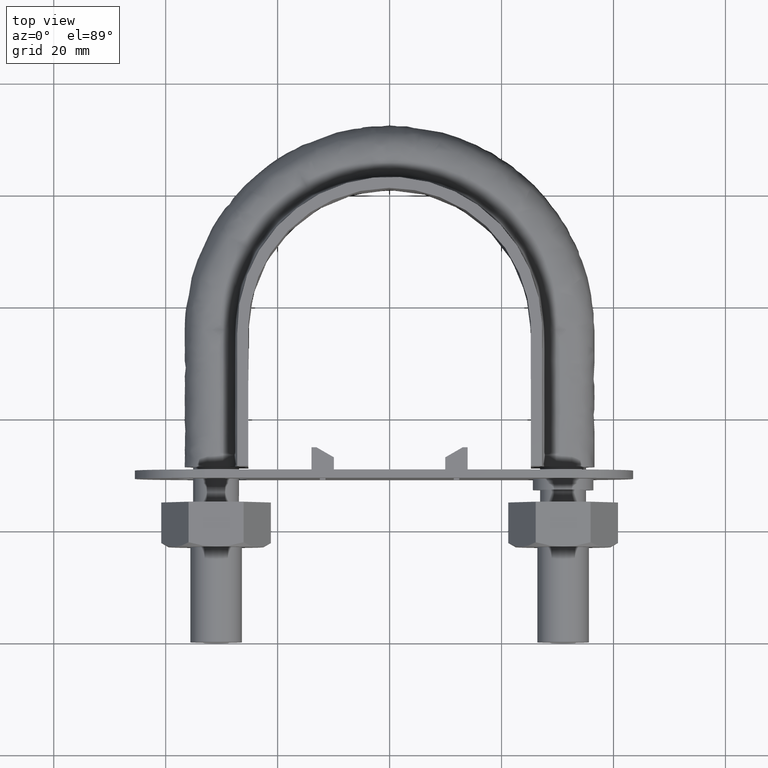
[diagram: clean part render]
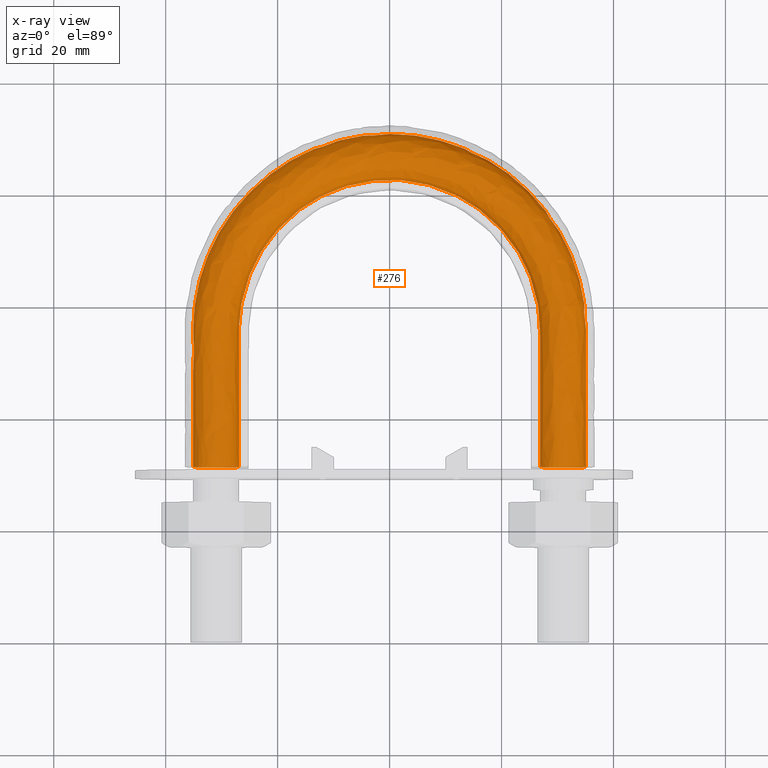
[diagram: x-ray — body ghosted, one internal face saturated and labeled with its STEP entity id]
A machine part, top view, then the same camera in x-ray: the body is ghosted and one INTERNAL B-rep face — a face not visible from any outside direction — is saturated and labeled: STEP entity #276.
In plain terms, the highlighted face is a freeform B-spline surface patch.
Its self-contained STEP definition (entity closure, byte-faithful):
#276 = ADVANCED_FACE( '', ( #399, #400 ), #401, .T. );
#399 = FACE_OUTER_BOUND( '', #1178, .T. );
#400 = FACE_OUTER_BOUND( '', #1179, .T. );
#401 = B_SPLINE_SURFACE_WITH_KNOTS( '', 3, 3, ( ( #1180, #1181, #1182, #1183, #1184, #1185, #1186, #1187, #1188, #1189, #1190, #1191, #1192, #1193, #1194 ), ( #1195, #1196, #1197, #1198, #1199, #1200, #1201, #1202, #1203, #1204, #1205, #1206, #1207, #1208, #1209 ), ( #1210, #1211, #1212, #1213, #1214, #1215, #1216, #1217, #1218, #1219, #1220, #1221, #1222, #1223, #1224 ), ( #1225, #1226, #1227, #1228, #1229, #1230, #1231, #1232, #1233, #1234, #1235, #1236, #1237, #1238, #1239 ), ( #1240, #1241, #1242, #1243, #1244, #1245, #1246, #1247, #1248, #1249, #1250, #1251, #1252, #1253, #1254 ), ( #1255, #1256, #1257, #1258, #1259, #1260, #1261, #1262, #1263, #1264, #1265, #1266, #1267, #1268, #1269 ), ( #1270, #1271, #1272, #1273, #1274, #1275, #1276, #1277, #1278, #1279, #1280, #1281, #1282, #1283, #1284 ), ( #1285, #1286, #1287, #1288, #1289, #1290, #1291, #1292, #1293, #1294, #1295, #1296, #1297, #1298, #1299 ), ( #1300, #1301, #1302, #1303, #1304, #1305, #1306, #1307, #1308, #1309, #1310, #1311, #1312, #1313, #1314 ), ( #1315, #1316, #1317, #1318, #1319, #1320, #1321, #1322, #1323, #1324, #1325, #1326, #1327, #1328, #1329 ) ), .UNSPECIFIED., .T., .F., .F., ( 2, 1, 1, 1, 1, 1, 1, 1, 1, 1, 1, 2 ), ( 4, 3, 1, 1, 1, 1, 1, 3, 4 ), ( -0.285714285714286, -0.142857142857143, 0.000000000000000, 0.142857142857143, 0.285714285714286, 0.428571428571429, 0.571428571428571, 0.714285714285714, 0.857142857142857, 1.00000000000000, 1.14285714285714, 1.28571428571429 ), ( 0.000000000000000, 1.00000000000000, 2.00000000000000, 3.00000000000000, 4.00000000000000, 5.00000000000000, 6.00000000000000, 7.00000000000000, 8.00000000000000 ), .UNSPECIFIED. );
#1178 = EDGE_LOOP( '', ( #1635, #1636, #1637, #1638, #1639, #1640, #1641 ) );
#1179 = EDGE_LOOP( '', ( #1642, #1643, #1644, #1645, #1646, #1647, #1648 ) );
#1180 = CARTESIAN_POINT( '', ( 28.0768231851220, 28.6500000000000, -3.66554778583225 ) );
#1181 = CARTESIAN_POINT( '', ( 28.0768231851220, 37.6833333333333, -3.66554778583225 ) );
#1182 = CARTESIAN_POINT( '', ( 28.0768231851220, 46.7166666666667, -3.66554778583225 ) );
#1183 = CARTESIAN_POINT( '', ( 28.0768231851220, 55.7500000000000, -3.66554778583225 ) );
#1184 = CARTESIAN_POINT( '', ( 28.0768231851220, 60.6360112912107, -3.66554778583225 ) );
#1185 = CARTESIAN_POINT( '', ( 25.4518771226932, 70.4503436557627, -3.66554778583225 ) );
#1186 = CARTESIAN_POINT( '', ( 14.6946481081682, 81.2002498233804, -3.66554778583225 ) );
#1187 = CARTESIAN_POINT( '', ( 1.73652058546102E-014, 85.1401098659927, -3.66554778583225 ) );
#1188 = CARTESIAN_POINT( '', ( -14.6946481081682, 81.2002498233804, -3.66554778583225 ) );
#1189 = CARTESIAN_POINT( '', ( -25.4518771226931, 70.4503436557627, -3.66554778583225 ) );
#1190 = CARTESIAN_POINT( '', ( -28.0768231851219, 60.6360112912107, -3.66554778583225 ) );
#1191 = CARTESIAN_POINT( '', ( -28.0768231851219, 55.7500000000000, -3.66554778583225 ) );
#1192 = CARTESIAN_POINT( '', ( -28.0768231851220, 46.7166666666666, -3.66554778583225 ) );
#1193 = CARTESIAN_POINT( '', ( -28.0768231851220, 37.6833333333333, -3.66554778583225 ) );
#1194 = CARTESIAN_POINT( '', ( -28.0768231851220, 28.6500000000000, -3.66554778583225 ) );
#1195 = CARTESIAN_POINT( '', ( 26.3115884074390, 28.6500000000000, 0.000000000000000 ) );
#1196 = CARTESIAN_POINT( '', ( 26.3115884074390, 37.6833333333333, 0.000000000000000 ) );
#1197 = CARTESIAN_POINT( '', ( 26.3115884074390, 46.7166666666666, 0.000000000000000 ) );
#1198 = CARTESIAN_POINT( '', ( 26.3115884074390, 55.7500000000000, 0.000000000000000 ) );
#1199 = CARTESIAN_POINT( '', ( 26.3115884074390, 60.3206824691230, 0.000000000000000 ) );
#1200 = CARTESIAN_POINT( '', ( 23.8516769021034, 69.5299070291376, 0.000000000000000 ) );
#1201 = CARTESIAN_POINT( '', ( 13.7707720800534, 79.5990669166508, 0.000000000000000 ) );
#1202 = CARTESIAN_POINT( '', ( 2.01747552169195E-014, 83.2928491528331, 0.000000000000000 ) );
#1203 = CARTESIAN_POINT( '', ( -13.7707720800534, 79.5990669166508, 0.000000000000000 ) );
#1204 = CARTESIAN_POINT( '', ( -23.8516769021034, 69.5299070291376, 0.000000000000000 ) );
#1205 = CARTESIAN_POINT( '', ( -26.3115884074390, 60.3206824691230, 0.000000000000000 ) );
#1206 = CARTESIAN_POINT( '', ( -26.3115884074390, 55.7500000000000, 0.000000000000000 ) );
#1207 = CARTESIAN_POINT( '', ( -26.3115884074390, 46.7166666666666, 0.000000000000000 ) );
#1208 = CARTESIAN_POINT( '', ( -26.3115884074390, 37.6833333333333, 0.000000000000000 ) );
#1209 = CARTESIAN_POINT( '', ( -26.3115884074390, 28.6500000000000, 0.000000000000000 ) );
#1210 = CARTESIAN_POINT( '', ( 28.0768231851220, 28.6500000000000, 3.66554778583225 ) );
#1211 = CARTESIAN_POINT( '', ( 28.0768231851220, 37.6833333333333, 3.66554778583225 ) );
#1212 = CARTESIAN_POINT( '', ( 28.0768231851220, 46.7166666666666, 3.66554778583225 ) );
#1213 = CARTESIAN_POINT( '', ( 28.0768231851220, 55.7500000000000, 3.66554778583225 ) );
#1214 = CARTESIAN_POINT( '', ( 28.0768231851220, 60.6360112912107, 3.66554778583225 ) );
#1215 = CARTESIAN_POINT( '', ( 25.4518771226932, 70.4503436557627, 3.66554778583225 ) );
#1216 = CARTESIAN_POINT( '', ( 14.6946481081682, 81.2002498233804, 3.66554778583225 ) );
#1217 = CARTESIAN_POINT( '', ( 2.60388232344943E-014, 85.1401098659927, 3.66554778583225 ) );
#1218 = CARTESIAN_POINT( '', ( -14.6946481081682, 81.2002498233804, 3.66554778583225 ) );
#1219 = CARTESIAN_POINT( '', ( -25.4518771226931, 70.4503436557627, 3.66554778583225 ) );
#1220 = CARTESIAN_POINT( '', ( -28.0768231851219, 60.6360112912107, 3.66554778583225 ) );
#1221 = CARTESIAN_POINT( '', ( -28.0768231851219, 55.7500000000000, 3.66554778583225 ) );
#1222 = CARTESIAN_POINT( '', ( -28.0768231851220, 46.7166666666666, 3.66554778583225 ) );
#1223 = CARTESIAN_POINT( '', ( -28.0768231851220, 37.6833333333333, 3.66554778583225 ) );
#1224 = CARTESIAN_POINT( '', ( -28.0768231851220, 28.6500000000000, 3.66554778583225 ) );
#1225 = CARTESIAN_POINT( '', ( 32.0432697263483, 28.6500000000000, 4.57086332538453 ) );
#1226 = CARTESIAN_POINT( '', ( 32.0432697263483, 37.6833333333333, 4.57086332538453 ) );
#1227 = CARTESIAN_POINT( '', ( 32.0432697263483, 46.7166666666666, 4.57086332538454 ) );
#1228 = CARTESIAN_POINT( '', ( 32.0432697263483, 55.7500000000000, 4.57086332538454 ) );
#1229 = CARTESIAN_POINT( '', ( 32.0432697263483, 61.3445487229058, 4.57086332538454 ) );
#1230 = CARTESIAN_POINT( '', ( 29.0474943802225, 72.5185459823037, 4.57086332538453 ) );
#1231 = CARTESIAN_POINT( '', ( 16.7705786997056, 84.7980751566230, 4.57086332538454 ) );
#1232 = CARTESIAN_POINT( '', ( 2.56797658538266E-014, 89.2908670112109, 4.57086332538454 ) );
#1233 = CARTESIAN_POINT( '', ( -16.7705786997056, 84.7980751566230, 4.57086332538454 ) );
#1234 = CARTESIAN_POINT( '', ( -29.0474943802224, 72.5185459823037, 4.57086332538453 ) );
#1235 = CARTESIAN_POINT( '', ( -32.0432697263483, 61.3445487229059, 4.57086332538454 ) );
#1236 = CARTESIAN_POINT( '', ( -32.0432697263483, 55.7500000000000, 4.57086332538454 ) );
#1237 = CARTESIAN_POINT( '', ( -32.0432697263483, 46.7166666666667, 4.57086332538454 ) );
#1238 = CARTESIAN_POINT( '', ( -32.0432697263483, 37.6833333333333, 4.57086332538453 ) );
#1239 = CARTESIAN_POINT( '', ( -32.0432697263483, 28.6500000000000, 4.57086332538453 ) );
#1240 = CARTESIAN_POINT( '', ( 35.2241128848103, 28.6500000000000, 2.03422555230246 ) );
#1241 = CARTESIAN_POINT( '', ( 35.2241128848102, 37.6833333333333, 2.03422555230246 ) );
#1242 = CARTESIAN_POINT( '', ( 35.2241128848103, 46.7166666666666, 2.03422555230246 ) );
#1243 = CARTESIAN_POINT( '', ( 35.2241128848103, 55.7500000000000, 2.03422555230246 ) );
#1244 = CARTESIAN_POINT( '', ( 35.2241128848103, 61.9127516266125, 2.03422555230246 ) );
#1245 = CARTESIAN_POINT( '', ( 31.9309555425463, 74.1771154732363, 2.03422555230246 ) );
#1246 = CARTESIAN_POINT( '', ( 18.4353457779711, 87.6833070581849, 2.03422555230247 ) );
#1247 = CARTESIAN_POINT( '', ( 2.17505856092942E-014, 92.6195157981229, 2.03422555230246 ) );
#1248 = CARTESIAN_POINT( '', ( -18.4353457779711, 87.6833070581848, 2.03422555230247 ) );
#1249 = CARTESIAN_POINT( '', ( -31.9309555425463, 74.1771154732363, 2.03422555230246 ) );
#1250 = CARTESIAN_POINT( '', ( -35.2241128848102, 61.9127516266125, 2.03422555230246 ) );
#1251 = CARTESIAN_POINT( '', ( -35.2241128848102, 55.7500000000000, 2.03422555230246 ) );
#1252 = CARTESIAN_POINT( '', ( -35.2241128848102, 46.7166666666667, 2.03422555230246 ) );
#1253 = CARTESIAN_POINT( '', ( -35.2241128848102, 37.6833333333333, 2.03422555230246 ) );
#1254 = CARTESIAN_POINT( '', ( -35.2241128848102, 28.6500000000000, 2.03422555230246 ) );
#1255 = CARTESIAN_POINT( '', ( 35.2241128848103, 28.6500000000000, -2.03422555230246 ) );
#1256 = CARTESIAN_POINT( '', ( 35.2241128848102, 37.6833333333333, -2.03422555230246 ) );
#1257 = CARTESIAN_POINT( '', ( 35.2241128848103, 46.7166666666666, -2.03422555230246 ) );
#1258 = CARTESIAN_POINT( '', ( 35.2241128848103, 55.7500000000000, -2.03422555230246 ) );
#1259 = CARTESIAN_POINT( '', ( 35.2241128848103, 61.9127516266125, -2.03422555230246 ) );
#1260 = CARTESIAN_POINT( '', ( 31.9309555425463, 74.1771154732363, -2.03422555230246 ) );
#1261 = CARTESIAN_POINT( '', ( 18.4353457779711, 87.6833070581848, -2.03422555230246 ) );
#1262 = CARTESIAN_POINT( '', ( 1.91485003953290E-014, 92.6195157981229, -2.03422555230246 ) );
#1263 = CARTESIAN_POINT( '', ( -18.4353457779711, 87.6833070581848, -2.03422555230246 ) );
#1264 = CARTESIAN_POINT( '', ( -31.9309555425463, 74.1771154732363, -2.03422555230246 ) );
#1265 = CARTESIAN_POINT( '', ( -35.2241128848102, 61.9127516266125, -2.03422555230246 ) );
#1266 = CARTESIAN_POINT( '', ( -35.2241128848102, 55.7500000000000, -2.03422555230246 ) );
#1267 = CARTESIAN_POINT( '', ( -35.2241128848102, 46.7166666666666, -2.03422555230246 ) );
#1268 = CARTESIAN_POINT( '', ( -35.2241128848102, 37.6833333333333, -2.03422555230246 ) );
#1269 = CARTESIAN_POINT( '', ( -35.2241128848102, 28.6500000000000, -2.03422555230246 ) );
#1270 = CARTESIAN_POINT( '', ( 32.0432697263483, 28.6500000000000, -4.57086332538454 ) );
#1271 = CARTESIAN_POINT( '', ( 32.0432697263483, 37.6833333333333, -4.57086332538454 ) );
#1272 = CARTESIAN_POINT( '', ( 32.0432697263483, 46.7166666666666, -4.57086332538454 ) );
#1273 = CARTESIAN_POINT( '', ( 32.0432697263483, 55.7500000000000, -4.57086332538454 ) );
#1274 = CARTESIAN_POINT( '', ( 32.0432697263483, 61.3445487229059, -4.57086332538454 ) );
#1275 = CARTESIAN_POINT( '', ( 29.0474943802225, 72.5185459823037, -4.57086332538453 ) );
#1276 = CARTESIAN_POINT( '', ( 16.7705786997056, 84.7980751566230, -4.57086332538454 ) );
#1277 = CARTESIAN_POINT( '', ( 1.61387867359542E-014, 89.2908670112109, -4.57086332538454 ) );
#1278 = CARTESIAN_POINT( '', ( -16.7705786997056, 84.7980751566230, -4.57086332538454 ) );
#1279 = CARTESIAN_POINT( '', ( -29.0474943802224, 72.5185459823037, -4.57086332538453 ) );
#1280 = CARTESIAN_POINT( '', ( -32.0432697263483, 61.3445487229059, -4.57086332538454 ) );
#1281 = CARTESIAN_POINT( '', ( -32.0432697263483, 55.7500000000000, -4.57086332538454 ) );
#1282 = CARTESIAN_POINT( '', ( -32.0432697263483, 46.7166666666667, -4.57086332538454 ) );
#1283 = CARTESIAN_POINT( '', ( -32.0432697263483, 37.6833333333333, -4.57086332538454 ) );
#1284 = CARTESIAN_POINT( '', ( -32.0432697263483, 28.6500000000000, -4.57086332538454 ) );
#1285 = CARTESIAN_POINT( '', ( 28.0768231851220, 28.6500000000000, -3.66554778583225 ) );
#1286 = CARTESIAN_POINT( '', ( 28.0768231851220, 37.6833333333333, -3.66554778583225 ) );
#1287 = CARTESIAN_POINT( '', ( 28.0768231851220, 46.7166666666667, -3.66554778583225 ) );
#1288 = CARTESIAN_POINT( '', ( 28.0768231851220, 55.7500000000000, -3.66554778583225 ) );
#1289 = CARTESIAN_POINT( '', ( 28.0768231851220, 60.6360112912107, -3.66554778583225 ) );
#1290 = CARTESIAN_POINT( '', ( 25.4518771226932, 70.4503436557627, -3.66554778583225 ) );
#1291 = CARTESIAN_POINT( '', ( 14.6946481081682, 81.2002498233804, -3.66554778583225 ) );
#1292 = CARTESIAN_POINT( '', ( 1.73652058546102E-014, 85.1401098659927, -3.66554778583225 ) );
#1293 = CARTESIAN_POINT( '', ( -14.6946481081682, 81.2002498233804, -3.66554778583225 ) );
#1294 = CARTESIAN_POINT( '', ( -25.4518771226931, 70.4503436557627, -3.66554778583225 ) );
#1295 = CARTESIAN_POINT( '', ( -28.0768231851219, 60.6360112912107, -3.66554778583225 ) );
#1296 = CARTESIAN_POINT( '', ( -28.0768231851219, 55.7500000000000, -3.66554778583225 ) );
#1297 = CARTESIAN_POINT( '', ( -28.0768231851220, 46.7166666666666, -3.66554778583225 ) );
#1298 = CARTESIAN_POINT( '', ( -28.0768231851220, 37.6833333333333, -3.66554778583225 ) );
#1299 = CARTESIAN_POINT( '', ( -28.0768231851220, 28.6500000000000, -3.66554778583225 ) );
#1300 = CARTESIAN_POINT( '', ( 26.3115884074390, 28.6500000000000, 0.000000000000000 ) );
#1301 = CARTESIAN_POINT( '', ( 26.3115884074390, 37.6833333333333, 0.000000000000000 ) );
#1302 = CARTESIAN_POINT( '', ( 26.3115884074390, 46.7166666666666, 0.000000000000000 ) );
#1303 = CARTESIAN_POINT( '', ( 26.3115884074390, 55.7500000000000, 0.000000000000000 ) );
#1304 = CARTESIAN_POINT( '', ( 26.3115884074390, 60.3206824691230, 0.000000000000000 ) );
#1305 = CARTESIAN_POINT( '', ( 23.8516769021034, 69.5299070291376, 0.000000000000000 ) );
#1306 = CARTESIAN_POINT( '', ( 13.7707720800534, 79.5990669166508, 0.000000000000000 ) );
#1307 = CARTESIAN_POINT( '', ( 2.01747552169195E-014, 83.2928491528331, 0.000000000000000 ) );
#1308 = CARTESIAN_POINT( '', ( -13.7707720800534, 79.5990669166508, 0.000000000000000 ) );
#1309 = CARTESIAN_POINT( '', ( -23.8516769021034, 69.5299070291376, 0.000000000000000 ) );
#1310 = CARTESIAN_POINT( '', ( -26.3115884074390, 60.3206824691230, 0.000000000000000 ) );
#1311 = CARTESIAN_POINT( '', ( -26.3115884074390, 55.7500000000000, 0.000000000000000 ) );
#1312 = CARTESIAN_POINT( '', ( -26.3115884074390, 46.7166666666666, 0.000000000000000 ) );
#1313 = CARTESIAN_POINT( '', ( -26.3115884074390, 37.6833333333333, 0.000000000000000 ) );
#1314 = CARTESIAN_POINT( '', ( -26.3115884074390, 28.6500000000000, 0.000000000000000 ) );
#1315 = CARTESIAN_POINT( '', ( 28.0768231851220, 28.6500000000000, 3.66554778583225 ) );
#1316 = CARTESIAN_POINT( '', ( 28.0768231851220, 37.6833333333333, 3.66554778583225 ) );
#1317 = CARTESIAN_POINT( '', ( 28.0768231851220, 46.7166666666666, 3.66554778583225 ) );
#1318 = CARTESIAN_POINT( '', ( 28.0768231851220, 55.7500000000000, 3.66554778583225 ) );
#1319 = CARTESIAN_POINT( '', ( 28.0768231851220, 60.6360112912107, 3.66554778583225 ) );
#1320 = CARTESIAN_POINT( '', ( 25.4518771226932, 70.4503436557627, 3.66554778583225 ) );
#1321 = CARTESIAN_POINT( '', ( 14.6946481081682, 81.2002498233804, 3.66554778583225 ) );
#1322 = CARTESIAN_POINT( '', ( 2.60388232344943E-014, 85.1401098659927, 3.66554778583225 ) );
#1323 = CARTESIAN_POINT( '', ( -14.6946481081682, 81.2002498233804, 3.66554778583225 ) );
#1324 = CARTESIAN_POINT( '', ( -25.4518771226931, 70.4503436557627, 3.66554778583225 ) );
#1325 = CARTESIAN_POINT( '', ( -28.0768231851219, 60.6360112912107, 3.66554778583225 ) );
#1326 = CARTESIAN_POINT( '', ( -28.0768231851219, 55.7500000000000, 3.66554778583225 ) );
#1327 = CARTESIAN_POINT( '', ( -28.0768231851220, 46.7166666666666, 3.66554778583225 ) );
#1328 = CARTESIAN_POINT( '', ( -28.0768231851220, 37.6833333333333, 3.66554778583225 ) );
#1329 = CARTESIAN_POINT( '', ( -28.0768231851220, 28.6500000000000, 3.66554778583225 ) );
#1635 = ORIENTED_EDGE( '', *, *, #2403, .T. );
#1636 = ORIENTED_EDGE( '', *, *, #2404, .T. );
#1637 = ORIENTED_EDGE( '', *, *, #2402, .T. );
#1638 = ORIENTED_EDGE( '', *, *, #2401, .T. );
#1639 = ORIENTED_EDGE( '', *, *, #2405, .T. );
#1640 = ORIENTED_EDGE( '', *, *, #2406, .T. );
#1641 = ORIENTED_EDGE( '', *, *, #2407, .T. );
#1642 = ORIENTED_EDGE( '', *, *, #2408, .T. );
#1643 = ORIENTED_EDGE( '', *, *, #2409, .T. );
#1644 = ORIENTED_EDGE( '', *, *, #2410, .T. );
#1645 = ORIENTED_EDGE( '', *, *, #2411, .T. );
#1646 = ORIENTED_EDGE( '', *, *, #2412, .T. );
#1647 = ORIENTED_EDGE( '', *, *, #2413, .T. );
#1648 = ORIENTED_EDGE( '', *, *, #2414, .T. );
#2401 = EDGE_CURVE( '', #2639, #2650, #2655, .T. );
#2402 = EDGE_CURVE( '', #2640, #2639, #2656, .T. );
#2403 = EDGE_CURVE( '', #2644, #2642, #2657, .T. );
#2404 = EDGE_CURVE( '', #2642, #2640, #2658, .T. );
#2405 = EDGE_CURVE( '', #2650, #2648, #2659, .T. );
#2406 = EDGE_CURVE( '', #2648, #2646, #2660, .T. );
#2407 = EDGE_CURVE( '', #2646, #2644, #2661, .T. );
#2408 = EDGE_CURVE( '', #2662, #2663, #2664, .T. );
#2409 = EDGE_CURVE( '', #2663, #2665, #2666, .T. );
#2410 = EDGE_CURVE( '', #2665, #2667, #2668, .T. );
#2411 = EDGE_CURVE( '', #2667, #2669, #2670, .T. );
#2412 = EDGE_CURVE( '', #2669, #2671, #2672, .T. );
#2413 = EDGE_CURVE( '', #2671, #2673, #2674, .T. );
#2414 = EDGE_CURVE( '', #2673, #2662, #2675, .T. );
#2639 = VERTEX_POINT( '', #3216 );
#2640 = VERTEX_POINT( '', #3217 );
#2642 = VERTEX_POINT( '', #3219 );
#2644 = VERTEX_POINT( '', #3221 );
#2646 = VERTEX_POINT( '', #3223 );
#2648 = VERTEX_POINT( '', #3225 );
#2650 = VERTEX_POINT( '', #3227 );
#2655 = B_SPLINE_CURVE_WITH_KNOTS( '', 3, ( #3232, #3233, #3234, #3235 ), .UNSPECIFIED., .F., .F., ( 4, 4 ), ( 0.0109748044148770, 0.0146317467085373 ), .UNSPECIFIED. );
#2656 = B_SPLINE_CURVE_WITH_KNOTS( '', 3, ( #3236, #3237, #3238, #3239 ), .UNSPECIFIED., .F., .F., ( 4, 4 ), ( 0.00731437302338642, 0.0109748044148770 ), .UNSPECIFIED. );
#2657 = B_SPLINE_CURVE_WITH_KNOTS( '', 3, ( #3240, #3241, #3242, #3243 ), .UNSPECIFIED., .F., .F., ( 4, 4 ), ( 5.55111512312578E-017, 0.00365969768494564 ), .UNSPECIFIED. );
#2658 = B_SPLINE_CURVE_WITH_KNOTS( '', 3, ( #3244, #3245, #3246, #3247 ), .UNSPECIFIED., .F., .F., ( 4, 4 ), ( 0.00365969768494564, 0.00731437302338642 ), .UNSPECIFIED. );
#2659 = B_SPLINE_CURVE_WITH_KNOTS( '', 3, ( #3248, #3249, #3250, #3251 ), .UNSPECIFIED., .F., .F., ( 4, 4 ), ( 0.0146317467085373, 0.0182856759681437 ), .UNSPECIFIED. );
#2660 = B_SPLINE_CURVE_WITH_KNOTS( '', 3, ( #3252, #3253, #3254, #3255 ), .UNSPECIFIED., .F., .F., ( 4, 4 ), ( 0.0182856759681437, 0.0219456464543835 ), .UNSPECIFIED. );
#2661 = B_SPLINE_CURVE_WITH_KNOTS( '', 3, ( #3256, #3257, #3258, #3259 ), .UNSPECIFIED., .F., .F., ( 4, 4 ), ( 0.0219456464543835, 0.0255944202292315 ), .UNSPECIFIED. );
#2662 = VERTEX_POINT( '', #3260 );
#2663 = VERTEX_POINT( '', #3261 );
#2664 = B_SPLINE_CURVE_WITH_KNOTS( '', 3, ( #3262, #3263, #3264, #3265 ), .UNSPECIFIED., .F., .F., ( 4, 4 ), ( 5.24367707879036E-017, 0.00365969768494545 ), .UNSPECIFIED. );
#2665 = VERTEX_POINT( '', #3266 );
#2666 = B_SPLINE_CURVE_WITH_KNOTS( '', 3, ( #3267, #3268, #3269, #3270 ), .UNSPECIFIED., .F., .F., ( 4, 4 ), ( 0.00365969768494545, 0.00731437302338650 ), .UNSPECIFIED. );
#2667 = VERTEX_POINT( '', #3271 );
#2668 = B_SPLINE_CURVE_WITH_KNOTS( '', 3, ( #3272, #3273, #3274, #3275 ), .UNSPECIFIED., .F., .F., ( 4, 4 ), ( 0.00731437302338650, 0.0109748044148777 ), .UNSPECIFIED. );
#2669 = VERTEX_POINT( '', #3276 );
#2670 = B_SPLINE_CURVE_WITH_KNOTS( '', 3, ( #3277, #3278, #3279, #3280 ), .UNSPECIFIED., .F., .F., ( 4, 4 ), ( 0.0109748044148777, 0.0146317467085369 ), .UNSPECIFIED. );
#2671 = VERTEX_POINT( '', #3281 );
#2672 = B_SPLINE_CURVE_WITH_KNOTS( '', 3, ( #3282, #3283, #3284, #3285 ), .UNSPECIFIED., .F., .F., ( 4, 4 ), ( 0.0146317467085369, 0.0182856759681434 ), .UNSPECIFIED. );
#2673 = VERTEX_POINT( '', #3286 );
#2674 = B_SPLINE_CURVE_WITH_KNOTS( '', 3, ( #3287, #3288, #3289, #3290 ), .UNSPECIFIED., .F., .F., ( 4, 4 ), ( 0.0182856759681434, 0.0219456464543830 ), .UNSPECIFIED. );
#2675 = B_SPLINE_CURVE_WITH_KNOTS( '', 3, ( #3291, #3292, #3293, #3294 ), .UNSPECIFIED., .F., .F., ( 4, 4 ), ( 0.0219456464543830, 0.0255944202292313 ), .UNSPECIFIED. );
#3216 = CARTESIAN_POINT( '', ( -34.6939723583996, 31.3000000000000, -1.77892333038264 ) );
#3217 = CARTESIAN_POINT( '', ( -31.9123358292208, 31.3000000000000, -3.99720443994549 ) );
#3219 = CARTESIAN_POINT( '', ( -28.4436918123791, 31.3000000000000, -3.20550907811888 ) );
#3221 = CARTESIAN_POINT( '', ( -26.9000000000000, 31.3000000000000, 5.50935031674880E-014 ) );
#3223 = CARTESIAN_POINT( '', ( -28.4436918123814, 31.3000000000000, 3.20550907812072 ) );
#3225 = CARTESIAN_POINT( '', ( -31.9123358292212, 31.3000000000000, 3.99720443994542 ) );
#3227 = CARTESIAN_POINT( '', ( -34.6939723583998, 31.3000000000000, 1.77892333038228 ) );
#3232 = CARTESIAN_POINT( '', ( -34.6939723583997, 31.3000000000000, -1.77892333038254 ) );
#3233 = CARTESIAN_POINT( '', ( -35.2241128848103, 31.3000000000000, -0.678075184101202 ) );
#3234 = CARTESIAN_POINT( '', ( -35.2241128848103, 31.3000000000000, 0.678075184100840 ) );
#3235 = CARTESIAN_POINT( '', ( -34.6939723583998, 31.3000000000000, 1.77892333038228 ) );
#3236 = CARTESIAN_POINT( '', ( -31.9123358292205, 31.3000000000000, -3.99720443994554 ) );
#3237 = CARTESIAN_POINT( '', ( -33.1035507791685, 31.3000000000000, -3.72531740102402 ) );
#3238 = CARTESIAN_POINT( '', ( -34.1638318319892, 31.3000000000000, -2.87977147666352 ) );
#3239 = CARTESIAN_POINT( '', ( -34.6939723583996, 31.3000000000000, -1.77892333038264 ) );
#3240 = CARTESIAN_POINT( '', ( -26.9000000000000, 31.3000000000000, 2.48282297499181E-014 ) );
#3241 = CARTESIAN_POINT( '', ( -26.9000000000000, 31.3000000000000, -1.22184926194405 ) );
#3242 = CARTESIAN_POINT( '', ( -27.4884115925610, 31.3000000000000, -2.44369852388812 ) );
#3243 = CARTESIAN_POINT( '', ( -28.4436918123791, 31.3000000000000, -3.20550907811888 ) );
#3244 = CARTESIAN_POINT( '', ( -28.4436918123791, 31.3000000000000, -3.20550907811886 ) );
#3245 = CARTESIAN_POINT( '', ( -29.3989720321973, 31.3000000000000, -3.96731963234964 ) );
#3246 = CARTESIAN_POINT( '', ( -30.7211208792728, 31.3000000000000, -4.26909147886710 ) );
#3247 = CARTESIAN_POINT( '', ( -31.9123358292208, 31.3000000000000, -3.99720443994549 ) );
#3248 = CARTESIAN_POINT( '', ( -34.6939723583998, 31.3000000000000, 1.77892333038218 ) );
#3249 = CARTESIAN_POINT( '', ( -34.1638318319895, 31.3000000000000, 2.87977147666318 ) );
#3250 = CARTESIAN_POINT( '', ( -33.1035507791690, 31.3000000000000, 3.72531740102373 ) );
#3251 = CARTESIAN_POINT( '', ( -31.9123358292212, 31.3000000000000, 3.99720443994541 ) );
#3252 = CARTESIAN_POINT( '', ( -31.9123358292222, 31.3000000000000, 3.99720443994514 ) );
#3253 = CARTESIAN_POINT( '', ( -30.7211208792745, 31.3000000000000, 4.26909147886706 ) );
#3254 = CARTESIAN_POINT( '', ( -29.3989720321996, 31.3000000000000, 3.96731963235021 ) );
#3255 = CARTESIAN_POINT( '', ( -28.4436918123814, 31.3000000000000, 3.20550907812072 ) );
#3256 = CARTESIAN_POINT( '', ( -28.4436918123814, 31.3000000000000, 3.20550907812072 ) );
#3257 = CARTESIAN_POINT( '', ( -27.4884115925619, 31.3000000000000, 2.44369852389009 ) );
#3258 = CARTESIAN_POINT( '', ( -26.9000000000000, 31.3000000000000, 1.22184926194505 ) );
#3259 = CARTESIAN_POINT( '', ( -26.9000000000000, 31.3000000000000, 5.42101086242752E-016 ) );
#3260 = CARTESIAN_POINT( '', ( 26.9000000000000, 31.3000000000000, -5.30615151082618E-014 ) );
#3261 = CARTESIAN_POINT( '', ( 28.4436918123790, 31.3000000000000, 3.20550907811878 ) );
#3262 = CARTESIAN_POINT( '', ( 26.9000000000000, 31.3000000000000, 4.33680868994202E-016 ) );
#3263 = CARTESIAN_POINT( '', ( 26.9000000000000, 31.3000000000000, 1.22184926194400 ) );
#3264 = CARTESIAN_POINT( '', ( 27.4884115925609, 31.3000000000000, 2.44369852388800 ) );
#3265 = CARTESIAN_POINT( '', ( 28.4436918123790, 31.3000000000000, 3.20550907811876 ) );
#3266 = CARTESIAN_POINT( '', ( 31.9123358292209, 31.3000000000000, 3.99720443994549 ) );
#3267 = CARTESIAN_POINT( '', ( 28.4436918123790, 31.3000000000000, 3.20550907811876 ) );
#3268 = CARTESIAN_POINT( '', ( 29.3989720321972, 31.3000000000000, 3.96731963234963 ) );
#3269 = CARTESIAN_POINT( '', ( 30.7211208792727, 31.3000000000000, 4.26909147886711 ) );
#3270 = CARTESIAN_POINT( '', ( 31.9123358292208, 31.3000000000000, 3.99720443994550 ) );
#3271 = CARTESIAN_POINT( '', ( 34.6939723583999, 31.3000000000000, 1.77892333038198 ) );
#3272 = CARTESIAN_POINT( '', ( 31.9123358292209, 31.3000000000000, 3.99720443994547 ) );
#3273 = CARTESIAN_POINT( '', ( 33.1035507791689, 31.3000000000000, 3.72531740102384 ) );
#3274 = CARTESIAN_POINT( '', ( 34.1638318319896, 31.3000000000000, 2.87977147666314 ) );
#3275 = CARTESIAN_POINT( '', ( 34.6939723583999, 31.3000000000000, 1.77892333038197 ) );
#3276 = CARTESIAN_POINT( '', ( 34.6939723584000, 31.3000000000000, -1.77892333038192 ) );
#3277 = CARTESIAN_POINT( '', ( 34.6939723583999, 31.3000000000000, 1.77892333038198 ) );
#3278 = CARTESIAN_POINT( '', ( 35.2241128848102, 31.3000000000000, 0.678075184100839 ) );
#3279 = CARTESIAN_POINT( '', ( 35.2241128848103, 31.3000000000000, -0.678075184100763 ) );
#3280 = CARTESIAN_POINT( '', ( 34.6939723584000, 31.3000000000000, -1.77892333038192 ) );
#3281 = CARTESIAN_POINT( '', ( 31.9123358292214, 31.3000000000000, -3.99720443994536 ) );
#3282 = CARTESIAN_POINT( '', ( 34.6939723584000, 31.3000000000000, -1.77892333038191 ) );
#3283 = CARTESIAN_POINT( '', ( 34.1638318319897, 31.3000000000000, -2.87977147666297 ) );
#3284 = CARTESIAN_POINT( '', ( 33.1035507791693, 31.3000000000000, -3.72531740102360 ) );
#3285 = CARTESIAN_POINT( '', ( 31.9123358292214, 31.3000000000000, -3.99720443994536 ) );
#3286 = CARTESIAN_POINT( '', ( 28.4436918123817, 31.3000000000000, -3.20550907812095 ) );
#3287 = CARTESIAN_POINT( '', ( 31.9123358292214, 31.3000000000000, -3.99720443994537 ) );
#3288 = CARTESIAN_POINT( '', ( 30.7211208792743, 31.3000000000000, -4.26909147886695 ) );
#3289 = CARTESIAN_POINT( '', ( 29.3989720322000, 31.3000000000000, -3.96731963235033 ) );
#3290 = CARTESIAN_POINT( '', ( 28.4436918123819, 31.3000000000000, -3.20550907812106 ) );
#3291 = CARTESIAN_POINT( '', ( 28.4436918123817, 31.3000000000000, -3.20550907812095 ) );
#3292 = CARTESIAN_POINT( '', ( 27.4884115925620, 31.3000000000000, -2.44369852389033 ) );
#3293 = CARTESIAN_POINT( '', ( 26.9000000000003, 31.3000000000000, -1.22184926194571 ) );
#3294 = CARTESIAN_POINT( '', ( 26.9000000000000, 31.3000000000000, -1.17137202715334E-012 ) );